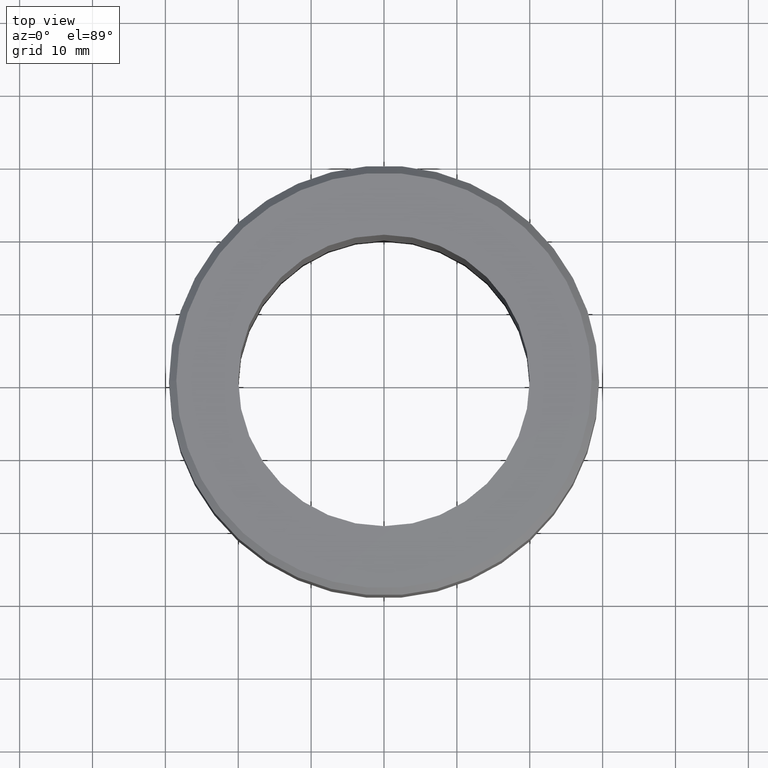
[diagram: clean part render]
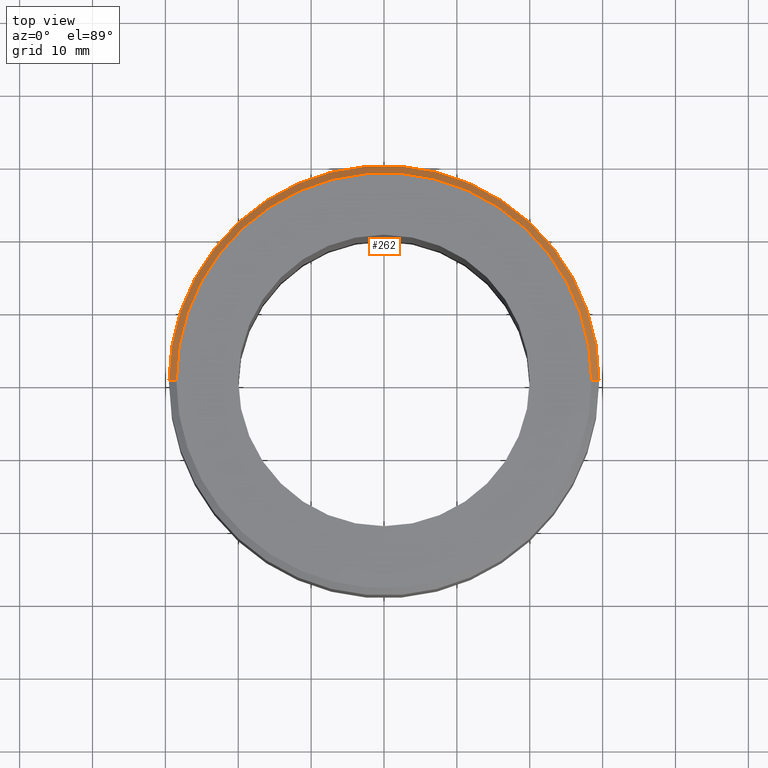
[diagram: same view with one face highlighted and labeled with its STEP entity id]
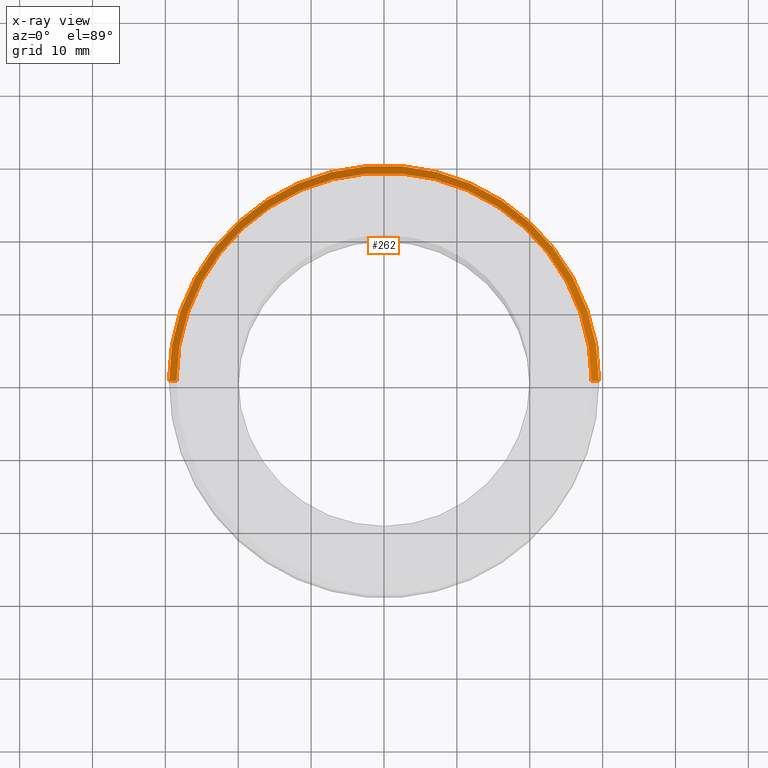
[diagram: x-ray of the same camera — body ghosted, the highlighted face saturated]
A machine part, top view. The second image highlights one B-rep face of the part: STEP entity #262.
The next image is the same camera in x-ray: the body ghosted, the highlighted face saturated — about 0% of this face is hidden behind the body in this view.
In plain terms, the highlighted conical surface has half-angle 45 deg.
Its self-contained STEP definition (entity closure, byte-faithful):
#7 = CARTESIAN_POINT ( 'NONE',  ( -28.49999999999998224, 0.000000000000000000, 0.000000000000000000 ) ) ;
#40 = CIRCLE ( 'NONE', #190, 29.50000000000000000 ) ;
#45 = EDGE_CURVE ( 'NONE', #189, #121, #409, .T. ) ;
#62 = CARTESIAN_POINT ( 'NONE',  ( 0.000000000000000000, 0.000000000000000000, -1.000000000000004441 ) ) ;
#74 = VERTEX_POINT ( 'NONE', #7 ) ;
#85 = ORIENTED_EDGE ( 'NONE', *, *, #45, .T. ) ;
#88 = VECTOR ( 'NONE', #122, 1000.000000000000000 ) ;
#116 = VECTOR ( 'NONE', #153, 1000.000000000000000 ) ;
#119 = EDGE_CURVE ( 'NONE', #74, #335, #494, .T. ) ;
#120 = CARTESIAN_POINT ( 'NONE',  ( -28.49999999999998224, 0.000000000000000000, 0.000000000000000000 ) ) ;
#121 = VERTEX_POINT ( 'NONE', #369 ) ;
#122 = DIRECTION ( 'NONE',  ( -0.7071067811865512365, 0.000000000000000000, -0.7071067811865439090 ) ) ;
#130 = DIRECTION ( 'NONE',  ( 1.000000000000000000, 0.000000000000000000, 0.000000000000000000 ) ) ;
#153 = DIRECTION ( 'NONE',  ( 0.7071067811865512365, 8.659560562354979697E-17, -0.7071067811865439090 ) ) ;
#162 = ORIENTED_EDGE ( 'NONE', *, *, #119, .F. ) ;
#167 = CIRCLE ( 'NONE', #341, 28.49999999999998224 ) ;
#189 = VERTEX_POINT ( 'NONE', #427 ) ;
#190 = AXIS2_PLACEMENT_3D ( 'NONE', #62, #250, #130 ) ;
#250 = DIRECTION ( 'NONE',  ( 0.000000000000000000, 0.000000000000000000, -1.000000000000000000 ) ) ;
#262 = ADVANCED_FACE ( 'NONE', ( #271 ), #466, .T. ) ;
#267 = DIRECTION ( 'NONE',  ( 1.000000000000000000, 0.000000000000000000, 0.000000000000000000 ) ) ;
#271 = FACE_OUTER_BOUND ( 'NONE', #348, .T. ) ;
#276 = EDGE_CURVE ( 'NONE', #189, #74, #167, .T. ) ;
#290 = ORIENTED_EDGE ( 'NONE', *, *, #359, .F. ) ;
#306 = DIRECTION ( 'NONE',  ( -0.000000000000000000, -0.000000000000000000, 1.000000000000000000 ) ) ;
#311 = DIRECTION ( 'NONE',  ( -1.000000000000000000, 0.000000000000000000, 0.000000000000000000 ) ) ;
#317 = CARTESIAN_POINT ( 'NONE',  ( 0.000000000000000000, 0.000000000000000000, 0.000000000000000000 ) ) ;
#335 = VERTEX_POINT ( 'NONE', #462 ) ;
#341 = AXIS2_PLACEMENT_3D ( 'NONE', #317, #306, #267 ) ;
#348 = EDGE_LOOP ( 'NONE', ( #384, #85, #290, #162 ) ) ;
#358 = DIRECTION ( 'NONE',  ( 0.000000000000000000, 0.000000000000000000, -1.000000000000000000 ) ) ;
#359 = EDGE_CURVE ( 'NONE', #335, #121, #40, .T. ) ;
#369 = CARTESIAN_POINT ( 'NONE',  ( 29.50000000000000000, 0.000000000000000000, -1.000000000000004441 ) ) ;
#384 = ORIENTED_EDGE ( 'NONE', *, *, #276, .F. ) ;
#400 = CARTESIAN_POINT ( 'NONE',  ( 0.000000000000000000, 0.000000000000000000, 0.000000000000000000 ) ) ;
#409 = LINE ( 'NONE', #531, #116 ) ;
#419 = AXIS2_PLACEMENT_3D ( 'NONE', #400, #358, #311 ) ;
#427 = CARTESIAN_POINT ( 'NONE',  ( 28.49999999999998224, 3.551475717527322452E-15, 0.000000000000000000 ) ) ;
#462 = CARTESIAN_POINT ( 'NONE',  ( -29.50000000000000000, 3.612708057484691604E-15, -1.000000000000004441 ) ) ;
#466 = CONICAL_SURFACE ( 'NONE', #419, 28.49999999999998224, 0.7853981633974533860 ) ;
#494 = LINE ( 'NONE', #120, #88 ) ;
#531 = CARTESIAN_POINT ( 'NONE',  ( 28.49999999999998224, 3.490243377569954483E-15, 0.000000000000000000 ) ) ;